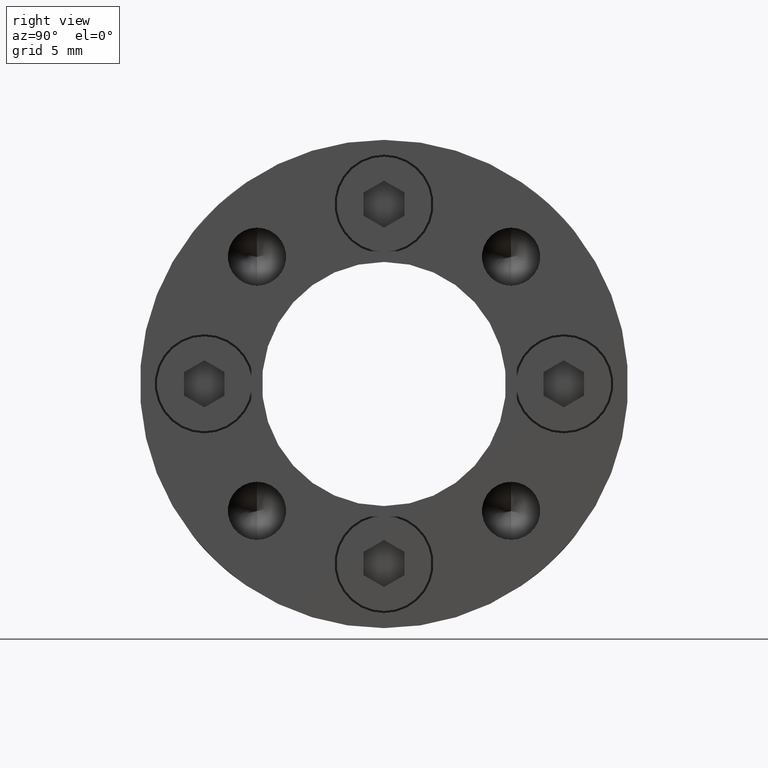
[diagram: clean part render]
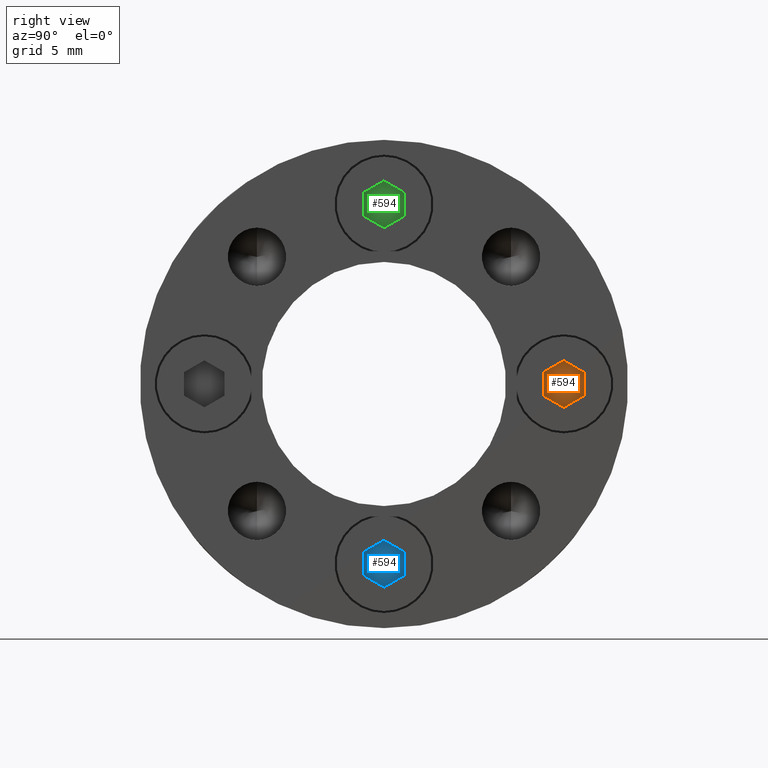
[diagram: same view with three faces highlighted in distinct colors, each labeled with its STEP entity id]
A machine part, right view with three faces highlighted in distinct colors.
Their STEP definitions:

[orange] entity #594 — the highlighted planar face has unit normal (-1, 0, 0).
#33 = ORIENTED_EDGE ( 'NONE', *, *, #1092, .T. ) ;
#72 = ORIENTED_EDGE ( 'NONE', *, *, #1091, .T. ) ;
#75 = ORIENTED_EDGE ( 'NONE', *, *, #596, .T. ) ;
#76 = ORIENTED_EDGE ( 'NONE', *, *, #611, .T. ) ;
#78 = ORIENTED_EDGE ( 'NONE', *, *, #1096, .T. ) ;
#82 = ORIENTED_EDGE ( 'NONE', *, *, #1683, .T. ) ;
#474 = CARTESIAN_POINT ( 'NONE',  ( 1.499999999999999800, 2.000000000000000000, -0.8660254037844389300 ) ) ;
#476 = PLANE ( 'NONE',  #1810 ) ;
#479 = DIRECTION ( 'NONE',  ( 0.0000000000000000000, -1.000000000000000000, 0.0000000000000000000 ) ) ;
#480 = DIRECTION ( 'NONE',  ( 0.0000000000000000000, -0.0000000000000000000, -1.000000000000000000 ) ) ;
#485 = CARTESIAN_POINT ( 'NONE',  ( -1.499999999999999800, 2.000000000000000000, -0.8660254037844386000 ) ) ;
#486 = DIRECTION ( 'NONE',  ( 3.755786496842897100E-016, 0.0000000000000000000, 1.000000000000000000 ) ) ;
#594 = ADVANCED_FACE ( 'NONE', ( #1598 ), #476, .F. ) ;
#596 = EDGE_CURVE ( 'NONE', #1325, #1323, #1607, .T. ) ;
#611 = EDGE_CURVE ( 'NONE', #1352, #1325, #1622, .T. ) ;
#706 = EDGE_LOOP ( 'NONE', ( #82, #76, #75, #72, #78, #33 ) ) ;
#1091 = EDGE_CURVE ( 'NONE', #1323, #1322, #2620, .T. ) ;
#1092 = EDGE_CURVE ( 'NONE', #1293, #1343, #2621, .T. ) ;
#1096 = EDGE_CURVE ( 'NONE', #1322, #1293, #2627, .T. ) ;
#1293 = VERTEX_POINT ( 'NONE', #3146 ) ;
#1322 = VERTEX_POINT ( 'NONE', #3175 ) ;
#1323 = VERTEX_POINT ( 'NONE', #3176 ) ;
#1325 = VERTEX_POINT ( 'NONE', #3178 ) ;
#1343 = VERTEX_POINT ( 'NONE', #3196 ) ;
#1352 = VERTEX_POINT ( 'NONE', #3205 ) ;
#1598 = FACE_OUTER_BOUND ( 'NONE', #706, .T. ) ;
#1606 = VECTOR ( 'NONE', #486, 1000.000000000000000 ) ;
#1607 = LINE ( 'NONE', #485, #1606 ) ;
#1621 = VECTOR ( 'NONE', #2101, 1000.000000000000000 ) ;
#1622 = LINE ( 'NONE', #2100, #1621 ) ;
#1683 = EDGE_CURVE ( 'NONE', #1343, #1352, #2640, .T. ) ;
#1810 = AXIS2_PLACEMENT_3D ( 'NONE', #474, #479, #480 ) ;
#2100 = CARTESIAN_POINT ( 'NONE',  ( -1.767567020076689400E-016, 2.000000000000000000, -1.732050807568877200 ) ) ;
#2101 = DIRECTION ( 'NONE',  ( -0.8660254037844386000, 0.0000000000000000000, 0.5000000000000001100 ) ) ;
#2620 = LINE ( 'NONE', #3067, #2622 ) ;
#2621 = LINE ( 'NONE', #3077, #2624 ) ;
#2622 = VECTOR ( 'NONE', #3068, 1000.000000000000100 ) ;
#2624 = VECTOR ( 'NONE', #3078, 1000.000000000000000 ) ;
#2627 = LINE ( 'NONE', #3080, #2632 ) ;
#2629 = VECTOR ( 'NONE', #3237, 1000.000000000000000 ) ;
#2632 = VECTOR ( 'NONE', #3086, 1000.000000000000000 ) ;
#2640 = LINE ( 'NONE', #3238, #2629 ) ;
#3067 = CARTESIAN_POINT ( 'NONE',  ( -1.499999999999999100, 2.000000000000000000, 0.8660254037844393700 ) ) ;
#3068 = DIRECTION ( 'NONE',  ( 0.8660254037844387100, 0.0000000000000000000, 0.4999999999999998300 ) ) ;
#3077 = CARTESIAN_POINT ( 'NONE',  ( 1.500000000000000000, 2.000000000000000000, 0.8660254037844387100 ) ) ;
#3078 = DIRECTION ( 'NONE',  ( -1.251928832280965900E-016, 0.0000000000000000000, -1.000000000000000000 ) ) ;
#3080 = CARTESIAN_POINT ( 'NONE',  ( 4.046263255784118500E-016, 2.000000000000000000, 1.732050807568877400 ) ) ;
#3086 = DIRECTION ( 'NONE',  ( 0.8660254037844386000, 0.0000000000000000000, -0.5000000000000001100 ) ) ;
#3146 = CARTESIAN_POINT ( 'NONE',  ( 1.500000000000000000, 2.000000000000000000, 0.8660254037844387100 ) ) ;
#3175 = CARTESIAN_POINT ( 'NONE',  ( 4.046263255784118500E-016, 2.000000000000000000, 1.732050807568877400 ) ) ;
#3176 = CARTESIAN_POINT ( 'NONE',  ( -1.499999999999999100, 2.000000000000000000, 0.8660254037844393700 ) ) ;
#3178 = CARTESIAN_POINT ( 'NONE',  ( -1.499999999999999800, 2.000000000000000000, -0.8660254037844386000 ) ) ;
#3196 = CARTESIAN_POINT ( 'NONE',  ( 1.499999999999999800, 2.000000000000000000, -0.8660254037844389300 ) ) ;
#3205 = CARTESIAN_POINT ( 'NONE',  ( -1.767567020076689400E-016, 2.000000000000000000, -1.732050807568877200 ) ) ;
#3237 = DIRECTION ( 'NONE',  ( -0.8660254037844387100, 0.0000000000000000000, -0.4999999999999998300 ) ) ;
#3238 = CARTESIAN_POINT ( 'NONE',  ( 1.499999999999999800, 2.000000000000000000, -0.8660254037844389300 ) ) ;

[blue] entity #594 — the highlighted planar face has unit normal (-1, 0, 0).
#33 = ORIENTED_EDGE ( 'NONE', *, *, #1092, .T. ) ;
#72 = ORIENTED_EDGE ( 'NONE', *, *, #1091, .T. ) ;
#75 = ORIENTED_EDGE ( 'NONE', *, *, #596, .T. ) ;
#76 = ORIENTED_EDGE ( 'NONE', *, *, #611, .T. ) ;
#78 = ORIENTED_EDGE ( 'NONE', *, *, #1096, .T. ) ;
#82 = ORIENTED_EDGE ( 'NONE', *, *, #1683, .T. ) ;
#474 = CARTESIAN_POINT ( 'NONE',  ( 1.499999999999999800, 2.000000000000000000, -0.8660254037844389300 ) ) ;
#476 = PLANE ( 'NONE',  #1810 ) ;
#479 = DIRECTION ( 'NONE',  ( 0.0000000000000000000, -1.000000000000000000, 0.0000000000000000000 ) ) ;
#480 = DIRECTION ( 'NONE',  ( 0.0000000000000000000, -0.0000000000000000000, -1.000000000000000000 ) ) ;
#485 = CARTESIAN_POINT ( 'NONE',  ( -1.499999999999999800, 2.000000000000000000, -0.8660254037844386000 ) ) ;
#486 = DIRECTION ( 'NONE',  ( 3.755786496842897100E-016, 0.0000000000000000000, 1.000000000000000000 ) ) ;
#594 = ADVANCED_FACE ( 'NONE', ( #1598 ), #476, .F. ) ;
#596 = EDGE_CURVE ( 'NONE', #1325, #1323, #1607, .T. ) ;
#611 = EDGE_CURVE ( 'NONE', #1352, #1325, #1622, .T. ) ;
#706 = EDGE_LOOP ( 'NONE', ( #82, #76, #75, #72, #78, #33 ) ) ;
#1091 = EDGE_CURVE ( 'NONE', #1323, #1322, #2620, .T. ) ;
#1092 = EDGE_CURVE ( 'NONE', #1293, #1343, #2621, .T. ) ;
#1096 = EDGE_CURVE ( 'NONE', #1322, #1293, #2627, .T. ) ;
#1293 = VERTEX_POINT ( 'NONE', #3146 ) ;
#1322 = VERTEX_POINT ( 'NONE', #3175 ) ;
#1323 = VERTEX_POINT ( 'NONE', #3176 ) ;
#1325 = VERTEX_POINT ( 'NONE', #3178 ) ;
#1343 = VERTEX_POINT ( 'NONE', #3196 ) ;
#1352 = VERTEX_POINT ( 'NONE', #3205 ) ;
#1598 = FACE_OUTER_BOUND ( 'NONE', #706, .T. ) ;
#1606 = VECTOR ( 'NONE', #486, 1000.000000000000000 ) ;
#1607 = LINE ( 'NONE', #485, #1606 ) ;
#1621 = VECTOR ( 'NONE', #2101, 1000.000000000000000 ) ;
#1622 = LINE ( 'NONE', #2100, #1621 ) ;
#1683 = EDGE_CURVE ( 'NONE', #1343, #1352, #2640, .T. ) ;
#1810 = AXIS2_PLACEMENT_3D ( 'NONE', #474, #479, #480 ) ;
#2100 = CARTESIAN_POINT ( 'NONE',  ( -1.767567020076689400E-016, 2.000000000000000000, -1.732050807568877200 ) ) ;
#2101 = DIRECTION ( 'NONE',  ( -0.8660254037844386000, 0.0000000000000000000, 0.5000000000000001100 ) ) ;
#2620 = LINE ( 'NONE', #3067, #2622 ) ;
#2621 = LINE ( 'NONE', #3077, #2624 ) ;
#2622 = VECTOR ( 'NONE', #3068, 1000.000000000000100 ) ;
#2624 = VECTOR ( 'NONE', #3078, 1000.000000000000000 ) ;
#2627 = LINE ( 'NONE', #3080, #2632 ) ;
#2629 = VECTOR ( 'NONE', #3237, 1000.000000000000000 ) ;
#2632 = VECTOR ( 'NONE', #3086, 1000.000000000000000 ) ;
#2640 = LINE ( 'NONE', #3238, #2629 ) ;
#3067 = CARTESIAN_POINT ( 'NONE',  ( -1.499999999999999100, 2.000000000000000000, 0.8660254037844393700 ) ) ;
#3068 = DIRECTION ( 'NONE',  ( 0.8660254037844387100, 0.0000000000000000000, 0.4999999999999998300 ) ) ;
#3077 = CARTESIAN_POINT ( 'NONE',  ( 1.500000000000000000, 2.000000000000000000, 0.8660254037844387100 ) ) ;
#3078 = DIRECTION ( 'NONE',  ( -1.251928832280965900E-016, 0.0000000000000000000, -1.000000000000000000 ) ) ;
#3080 = CARTESIAN_POINT ( 'NONE',  ( 4.046263255784118500E-016, 2.000000000000000000, 1.732050807568877400 ) ) ;
#3086 = DIRECTION ( 'NONE',  ( 0.8660254037844386000, 0.0000000000000000000, -0.5000000000000001100 ) ) ;
#3146 = CARTESIAN_POINT ( 'NONE',  ( 1.500000000000000000, 2.000000000000000000, 0.8660254037844387100 ) ) ;
#3175 = CARTESIAN_POINT ( 'NONE',  ( 4.046263255784118500E-016, 2.000000000000000000, 1.732050807568877400 ) ) ;
#3176 = CARTESIAN_POINT ( 'NONE',  ( -1.499999999999999100, 2.000000000000000000, 0.8660254037844393700 ) ) ;
#3178 = CARTESIAN_POINT ( 'NONE',  ( -1.499999999999999800, 2.000000000000000000, -0.8660254037844386000 ) ) ;
#3196 = CARTESIAN_POINT ( 'NONE',  ( 1.499999999999999800, 2.000000000000000000, -0.8660254037844389300 ) ) ;
#3205 = CARTESIAN_POINT ( 'NONE',  ( -1.767567020076689400E-016, 2.000000000000000000, -1.732050807568877200 ) ) ;
#3237 = DIRECTION ( 'NONE',  ( -0.8660254037844387100, 0.0000000000000000000, -0.4999999999999998300 ) ) ;
#3238 = CARTESIAN_POINT ( 'NONE',  ( 1.499999999999999800, 2.000000000000000000, -0.8660254037844389300 ) ) ;

[green] entity #594 — the highlighted planar face has unit normal (-1, 0, 0).
#33 = ORIENTED_EDGE ( 'NONE', *, *, #1092, .T. ) ;
#72 = ORIENTED_EDGE ( 'NONE', *, *, #1091, .T. ) ;
#75 = ORIENTED_EDGE ( 'NONE', *, *, #596, .T. ) ;
#76 = ORIENTED_EDGE ( 'NONE', *, *, #611, .T. ) ;
#78 = ORIENTED_EDGE ( 'NONE', *, *, #1096, .T. ) ;
#82 = ORIENTED_EDGE ( 'NONE', *, *, #1683, .T. ) ;
#474 = CARTESIAN_POINT ( 'NONE',  ( 1.499999999999999800, 2.000000000000000000, -0.8660254037844389300 ) ) ;
#476 = PLANE ( 'NONE',  #1810 ) ;
#479 = DIRECTION ( 'NONE',  ( 0.0000000000000000000, -1.000000000000000000, 0.0000000000000000000 ) ) ;
#480 = DIRECTION ( 'NONE',  ( 0.0000000000000000000, -0.0000000000000000000, -1.000000000000000000 ) ) ;
#485 = CARTESIAN_POINT ( 'NONE',  ( -1.499999999999999800, 2.000000000000000000, -0.8660254037844386000 ) ) ;
#486 = DIRECTION ( 'NONE',  ( 3.755786496842897100E-016, 0.0000000000000000000, 1.000000000000000000 ) ) ;
#594 = ADVANCED_FACE ( 'NONE', ( #1598 ), #476, .F. ) ;
#596 = EDGE_CURVE ( 'NONE', #1325, #1323, #1607, .T. ) ;
#611 = EDGE_CURVE ( 'NONE', #1352, #1325, #1622, .T. ) ;
#706 = EDGE_LOOP ( 'NONE', ( #82, #76, #75, #72, #78, #33 ) ) ;
#1091 = EDGE_CURVE ( 'NONE', #1323, #1322, #2620, .T. ) ;
#1092 = EDGE_CURVE ( 'NONE', #1293, #1343, #2621, .T. ) ;
#1096 = EDGE_CURVE ( 'NONE', #1322, #1293, #2627, .T. ) ;
#1293 = VERTEX_POINT ( 'NONE', #3146 ) ;
#1322 = VERTEX_POINT ( 'NONE', #3175 ) ;
#1323 = VERTEX_POINT ( 'NONE', #3176 ) ;
#1325 = VERTEX_POINT ( 'NONE', #3178 ) ;
#1343 = VERTEX_POINT ( 'NONE', #3196 ) ;
#1352 = VERTEX_POINT ( 'NONE', #3205 ) ;
#1598 = FACE_OUTER_BOUND ( 'NONE', #706, .T. ) ;
#1606 = VECTOR ( 'NONE', #486, 1000.000000000000000 ) ;
#1607 = LINE ( 'NONE', #485, #1606 ) ;
#1621 = VECTOR ( 'NONE', #2101, 1000.000000000000000 ) ;
#1622 = LINE ( 'NONE', #2100, #1621 ) ;
#1683 = EDGE_CURVE ( 'NONE', #1343, #1352, #2640, .T. ) ;
#1810 = AXIS2_PLACEMENT_3D ( 'NONE', #474, #479, #480 ) ;
#2100 = CARTESIAN_POINT ( 'NONE',  ( -1.767567020076689400E-016, 2.000000000000000000, -1.732050807568877200 ) ) ;
#2101 = DIRECTION ( 'NONE',  ( -0.8660254037844386000, 0.0000000000000000000, 0.5000000000000001100 ) ) ;
#2620 = LINE ( 'NONE', #3067, #2622 ) ;
#2621 = LINE ( 'NONE', #3077, #2624 ) ;
#2622 = VECTOR ( 'NONE', #3068, 1000.000000000000100 ) ;
#2624 = VECTOR ( 'NONE', #3078, 1000.000000000000000 ) ;
#2627 = LINE ( 'NONE', #3080, #2632 ) ;
#2629 = VECTOR ( 'NONE', #3237, 1000.000000000000000 ) ;
#2632 = VECTOR ( 'NONE', #3086, 1000.000000000000000 ) ;
#2640 = LINE ( 'NONE', #3238, #2629 ) ;
#3067 = CARTESIAN_POINT ( 'NONE',  ( -1.499999999999999100, 2.000000000000000000, 0.8660254037844393700 ) ) ;
#3068 = DIRECTION ( 'NONE',  ( 0.8660254037844387100, 0.0000000000000000000, 0.4999999999999998300 ) ) ;
#3077 = CARTESIAN_POINT ( 'NONE',  ( 1.500000000000000000, 2.000000000000000000, 0.8660254037844387100 ) ) ;
#3078 = DIRECTION ( 'NONE',  ( -1.251928832280965900E-016, 0.0000000000000000000, -1.000000000000000000 ) ) ;
#3080 = CARTESIAN_POINT ( 'NONE',  ( 4.046263255784118500E-016, 2.000000000000000000, 1.732050807568877400 ) ) ;
#3086 = DIRECTION ( 'NONE',  ( 0.8660254037844386000, 0.0000000000000000000, -0.5000000000000001100 ) ) ;
#3146 = CARTESIAN_POINT ( 'NONE',  ( 1.500000000000000000, 2.000000000000000000, 0.8660254037844387100 ) ) ;
#3175 = CARTESIAN_POINT ( 'NONE',  ( 4.046263255784118500E-016, 2.000000000000000000, 1.732050807568877400 ) ) ;
#3176 = CARTESIAN_POINT ( 'NONE',  ( -1.499999999999999100, 2.000000000000000000, 0.8660254037844393700 ) ) ;
#3178 = CARTESIAN_POINT ( 'NONE',  ( -1.499999999999999800, 2.000000000000000000, -0.8660254037844386000 ) ) ;
#3196 = CARTESIAN_POINT ( 'NONE',  ( 1.499999999999999800, 2.000000000000000000, -0.8660254037844389300 ) ) ;
#3205 = CARTESIAN_POINT ( 'NONE',  ( -1.767567020076689400E-016, 2.000000000000000000, -1.732050807568877200 ) ) ;
#3237 = DIRECTION ( 'NONE',  ( -0.8660254037844387100, 0.0000000000000000000, -0.4999999999999998300 ) ) ;
#3238 = CARTESIAN_POINT ( 'NONE',  ( 1.499999999999999800, 2.000000000000000000, -0.8660254037844389300 ) ) ;